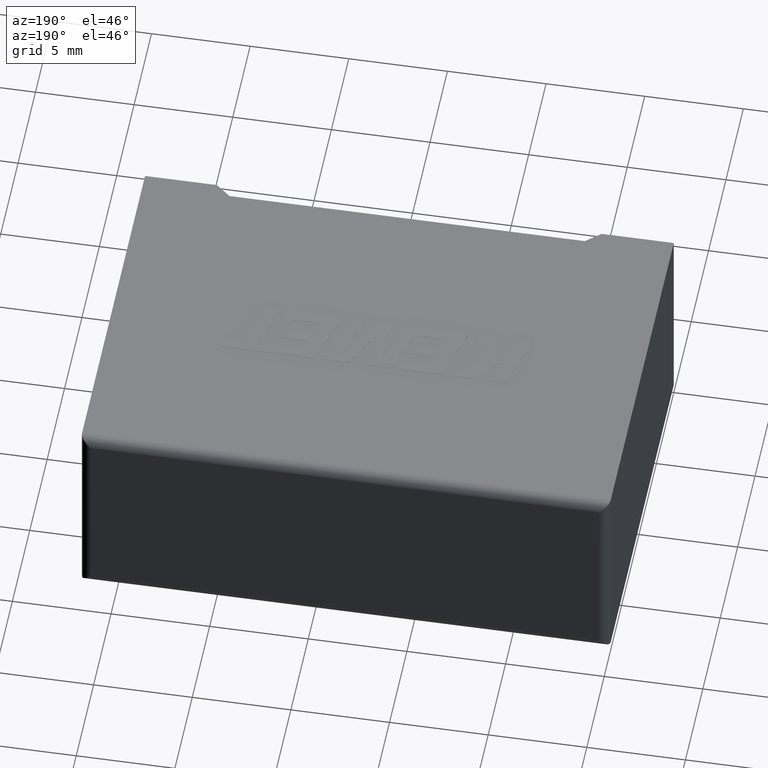
[diagram: clean part render]
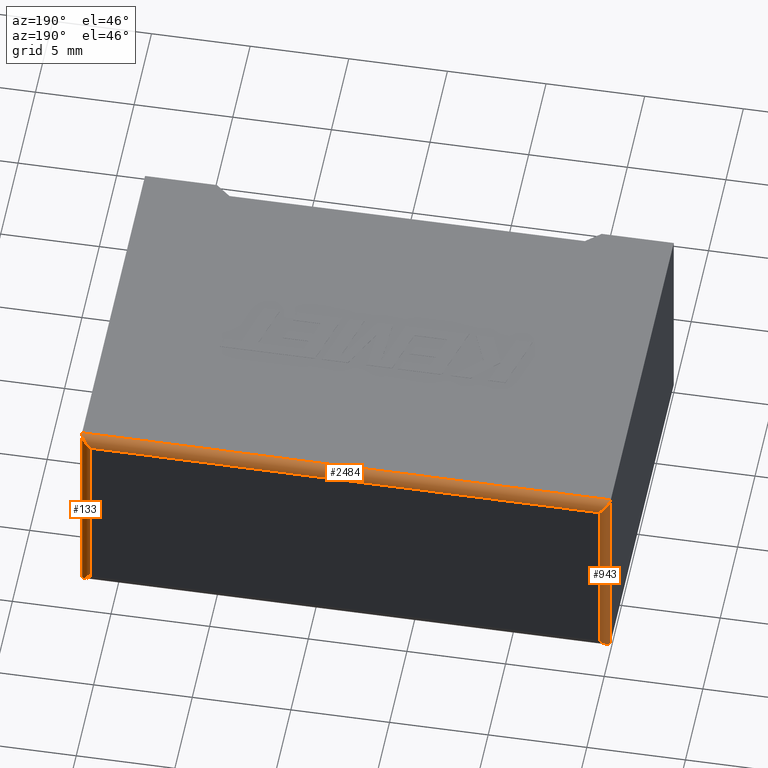
[diagram: same view with one multi-face feature highlighted, each face labeled with its STEP entity id]
A machine part, auxiliary view. The highlighted faces form ONE feature: a constant-radius fillet chain: 3 tangent blend faces with common blend radius 0.5 mm. The faces share edges in the B-rep.
Their STEP definitions:
[1] entity #133 (Cylinder):
#13 = DIRECTION ( 'NONE',  ( -1.000000000000000000, 0.000000000000000000, 0.000000000000000000 ) ) ;
#20 = ORIENTED_EDGE ( 'NONE', *, *, #569, .F. ) ;
#133 = ADVANCED_FACE ( 'NONE', ( #1385 ), #2353, .T. ) ;
#204 = CARTESIAN_POINT ( 'NONE',  ( 26.80000000000000071, 18.10000000000000142, 0.000000000000000000 ) ) ;
#207 = EDGE_CURVE ( 'NONE', #1116, #2681, #519, .T. ) ;
#297 = CARTESIAN_POINT ( 'NONE',  ( 26.80000000000000071, 18.10000000000000142, 10.19999999999999929 ) ) ;
#336 = LINE ( 'NONE', #297, #1291 ) ;
#414 = ORIENTED_EDGE ( 'NONE', *, *, #207, .F. ) ;
#519 =( BOUNDED_CURVE ( )  B_SPLINE_CURVE ( 3, ( #1913, #2195, #737, #1002 ),
 .UNSPECIFIED., .F., .F. ) 
 B_SPLINE_CURVE_WITH_KNOTS ( ( 4, 4 ),
 ( 3.141592653589793116, 4.712388980384689674 ),
 .UNSPECIFIED. ) 
 CURVE ( )  GEOMETRIC_REPRESENTATION_ITEM ( )  RATIONAL_B_SPLINE_CURVE ( ( 1.000000000000000000, 0.8047378541243649375, 0.8047378541243649375, 1.000000000000000000 ) ) 
 REPRESENTATION_ITEM ( '' )  );
#569 = EDGE_CURVE ( 'NONE', #2681, #1154, #2877, .T. ) ;
#687 = CARTESIAN_POINT ( 'NONE',  ( 26.80000000000000071, 18.10000000000000142, 10.19999999999999929 ) ) ;
#737 = CARTESIAN_POINT ( 'NONE',  ( 26.59289321881345103, 18.60000000000000142, 9.992893218813451384 ) ) ;
#980 = CARTESIAN_POINT ( 'NONE',  ( 26.30000000000000071, 18.60000000000000142, 10.19999999999999929 ) ) ;
#1002 = CARTESIAN_POINT ( 'NONE',  ( 26.30000000000000071, 18.60000000000000142, 9.699999999999999289 ) ) ;
#1016 = EDGE_LOOP ( 'NONE', ( #2862, #20, #414, #1764 ) ) ;
#1037 = CARTESIAN_POINT ( 'NONE',  ( 26.30000000000000071, 18.60000000000000142, 0.5000000000000004441 ) ) ;
#1116 = VERTEX_POINT ( 'NONE', #687 ) ;
#1154 = VERTEX_POINT ( 'NONE', #1899 ) ;
#1172 = VERTEX_POINT ( 'NONE', #204 ) ;
#1291 = VECTOR ( 'NONE', #2240, 1000.000000000000000 ) ;
#1300 = AXIS2_PLACEMENT_3D ( 'NONE', #1665, #2138, #13 ) ;
#1327 = EDGE_CURVE ( 'NONE', #1172, #1116, #336, .T. ) ;
#1385 = FACE_OUTER_BOUND ( 'NONE', #1016, .T. ) ;
#1497 = CARTESIAN_POINT ( 'NONE',  ( 26.30000000000000071, 18.60000000000000142, 9.699999999999999289 ) ) ;
#1665 = CARTESIAN_POINT ( 'NONE',  ( 26.30000000000000071, 18.10000000000000142, 10.19999999999999929 ) ) ;
#1764 = ORIENTED_EDGE ( 'NONE', *, *, #1327, .F. ) ;
#1887 =( BOUNDED_CURVE ( )  B_SPLINE_CURVE ( 3, ( #1037, #2013, #2922, #2275 ),
 .UNSPECIFIED., .F., .F. ) 
 B_SPLINE_CURVE_WITH_KNOTS ( ( 4, 4 ),
 ( 4.712388980384689674, 6.283185307179586232 ),
 .UNSPECIFIED. ) 
 CURVE ( )  GEOMETRIC_REPRESENTATION_ITEM ( )  RATIONAL_B_SPLINE_CURVE ( ( 1.000000000000000000, 0.8047378541243649375, 0.8047378541243649375, 1.000000000000000000 ) ) 
 REPRESENTATION_ITEM ( '' )  );
#1899 = CARTESIAN_POINT ( 'NONE',  ( 26.30000000000000071, 18.60000000000000142, 0.5000000000000004441 ) ) ;
#1913 = CARTESIAN_POINT ( 'NONE',  ( 26.80000000000000071, 18.10000000000000142, 10.19999999999999929 ) ) ;
#2013 = CARTESIAN_POINT ( 'NONE',  ( 26.59289321881345103, 18.60000000000000142, 0.2071067811865480723 ) ) ;
#2062 = EDGE_CURVE ( 'NONE', #1154, #1172, #1887, .T. ) ;
#2138 = DIRECTION ( 'NONE',  ( 0.000000000000000000, 0.000000000000000000, -1.000000000000000000 ) ) ;
#2195 = CARTESIAN_POINT ( 'NONE',  ( 26.80000000000000071, 18.39289321881345529, 10.19999999999999929 ) ) ;
#2240 = DIRECTION ( 'NONE',  ( -0.000000000000000000, -0.000000000000000000, 1.000000000000000000 ) ) ;
#2275 = CARTESIAN_POINT ( 'NONE',  ( 26.80000000000000071, 18.10000000000000142, 0.000000000000000000 ) ) ;
#2353 = CYLINDRICAL_SURFACE ( 'NONE', #1300, 0.5000000000000004441 ) ;
#2604 = VECTOR ( 'NONE', #2623, 1000.000000000000000 ) ;
#2623 = DIRECTION ( 'NONE',  ( 0.000000000000000000, 0.000000000000000000, -1.000000000000000000 ) ) ;
#2681 = VERTEX_POINT ( 'NONE', #1497 ) ;
#2862 = ORIENTED_EDGE ( 'NONE', *, *, #2062, .F. ) ;
#2877 = LINE ( 'NONE', #980, #2604 ) ;
#2922 = CARTESIAN_POINT ( 'NONE',  ( 26.80000000000000071, 18.39289321881345529, 5.421010862427522170E-16 ) ) ;
[2] entity #2484 (Cylinder):
#9 = LINE ( 'NONE', #1431, #2153 ) ;
#24 = ORIENTED_EDGE ( 'NONE', *, *, #136, .F. ) ;
#136 = EDGE_CURVE ( 'NONE', #1116, #528, #9, .T. ) ;
#173 = CARTESIAN_POINT ( 'NONE',  ( 0.5000000000000000000, 18.60000000000000142, 9.699999999999999289 ) ) ;
#207 = EDGE_CURVE ( 'NONE', #1116, #2681, #519, .T. ) ;
#298 = ORIENTED_EDGE ( 'NONE', *, *, #2242, .F. ) ;
#429 = CARTESIAN_POINT ( 'NONE',  ( 0.000000000000000000, 18.10000000000000142, 10.19999999999999929 ) ) ;
#469 = AXIS2_PLACEMENT_3D ( 'NONE', #2527, #1124, #2801 ) ;
#519 =( BOUNDED_CURVE ( )  B_SPLINE_CURVE ( 3, ( #1913, #2195, #737, #1002 ),
 .UNSPECIFIED., .F., .F. ) 
 B_SPLINE_CURVE_WITH_KNOTS ( ( 4, 4 ),
 ( 3.141592653589793116, 4.712388980384689674 ),
 .UNSPECIFIED. ) 
 CURVE ( )  GEOMETRIC_REPRESENTATION_ITEM ( )  RATIONAL_B_SPLINE_CURVE ( ( 1.000000000000000000, 0.8047378541243649375, 0.8047378541243649375, 1.000000000000000000 ) ) 
 REPRESENTATION_ITEM ( '' )  );
#528 = VERTEX_POINT ( 'NONE', #968 ) ;
#687 = CARTESIAN_POINT ( 'NONE',  ( 26.80000000000000071, 18.10000000000000142, 10.19999999999999929 ) ) ;
#737 = CARTESIAN_POINT ( 'NONE',  ( 26.59289321881345103, 18.60000000000000142, 9.992893218813451384 ) ) ;
#968 = CARTESIAN_POINT ( 'NONE',  ( 0.000000000000000000, 18.10000000000000142, 10.19999999999999929 ) ) ;
#1002 = CARTESIAN_POINT ( 'NONE',  ( 26.30000000000000071, 18.60000000000000142, 9.699999999999999289 ) ) ;
#1116 = VERTEX_POINT ( 'NONE', #687 ) ;
#1124 = DIRECTION ( 'NONE',  ( -1.000000000000000000, 0.000000000000000000, 0.000000000000000000 ) ) ;
#1240 = ORIENTED_EDGE ( 'NONE', *, *, #207, .T. ) ;
#1266 =( BOUNDED_CURVE ( )  B_SPLINE_CURVE ( 3, ( #429, #1358, #1863, #2758 ),
 .UNSPECIFIED., .F., .F. ) 
 B_SPLINE_CURVE_WITH_KNOTS ( ( 4, 4 ),
 ( 0.000000000000000000, 1.570796326794896558 ),
 .UNSPECIFIED. ) 
 CURVE ( )  GEOMETRIC_REPRESENTATION_ITEM ( )  RATIONAL_B_SPLINE_CURVE ( ( 1.000000000000000000, 0.8047378541243649375, 0.8047378541243649375, 1.000000000000000000 ) ) 
 REPRESENTATION_ITEM ( '' )  );
#1358 = CARTESIAN_POINT ( 'NONE',  ( 1.084202172485504434E-16, 18.39289321881345529, 10.19999999999999929 ) ) ;
#1431 = CARTESIAN_POINT ( 'NONE',  ( 0.000000000000000000, 18.10000000000000142, 10.19999999999999929 ) ) ;
#1497 = CARTESIAN_POINT ( 'NONE',  ( 26.30000000000000071, 18.60000000000000142, 9.699999999999999289 ) ) ;
#1738 = EDGE_LOOP ( 'NONE', ( #1240, #1813, #298, #24 ) ) ;
#1813 = ORIENTED_EDGE ( 'NONE', *, *, #2019, .F. ) ;
#1863 = CARTESIAN_POINT ( 'NONE',  ( 0.2071067811865475727, 18.60000000000000142, 9.992893218813451384 ) ) ;
#1913 = CARTESIAN_POINT ( 'NONE',  ( 26.80000000000000071, 18.10000000000000142, 10.19999999999999929 ) ) ;
#1930 = DIRECTION ( 'NONE',  ( -1.000000000000000000, 0.000000000000000000, 0.000000000000000000 ) ) ;
#1961 = CARTESIAN_POINT ( 'NONE',  ( 0.000000000000000000, 18.60000000000000142, 9.699999999999999289 ) ) ;
#2019 = EDGE_CURVE ( 'NONE', #2237, #2681, #2907, .T. ) ;
#2153 = VECTOR ( 'NONE', #1930, 1000.000000000000000 ) ;
#2195 = CARTESIAN_POINT ( 'NONE',  ( 26.80000000000000071, 18.39289321881345529, 10.19999999999999929 ) ) ;
#2237 = VERTEX_POINT ( 'NONE', #173 ) ;
#2242 = EDGE_CURVE ( 'NONE', #528, #2237, #1266, .T. ) ;
#2313 = CYLINDRICAL_SURFACE ( 'NONE', #469, 0.5000000000000004441 ) ;
#2376 = DIRECTION ( 'NONE',  ( 1.000000000000000000, -0.000000000000000000, -0.000000000000000000 ) ) ;
#2484 = ADVANCED_FACE ( 'NONE', ( #2814 ), #2313, .T. ) ;
#2527 = CARTESIAN_POINT ( 'NONE',  ( 0.000000000000000000, 18.10000000000000142, 9.699999999999999289 ) ) ;
#2681 = VERTEX_POINT ( 'NONE', #1497 ) ;
#2758 = CARTESIAN_POINT ( 'NONE',  ( 0.5000000000000000000, 18.60000000000000142, 9.699999999999999289 ) ) ;
#2801 = DIRECTION ( 'NONE',  ( 0.000000000000000000, 0.000000000000000000, 1.000000000000000000 ) ) ;
#2814 = FACE_OUTER_BOUND ( 'NONE', #1738, .T. ) ;
#2886 = VECTOR ( 'NONE', #2376, 1000.000000000000000 ) ;
#2907 = LINE ( 'NONE', #1961, #2886 ) ;
[3] entity #943 (Cylinder):
#104 = CARTESIAN_POINT ( 'NONE',  ( 0.000000000000000000, 18.10000000000000142, 0.000000000000000000 ) ) ;
#124 = CARTESIAN_POINT ( 'NONE',  ( 0.5000000000000000000, 18.60000000000000142, 0.5000000000000004441 ) ) ;
#130 = CARTESIAN_POINT ( 'NONE',  ( 0.5000000000000000000, 18.60000000000000142, 0.5000000000000004441 ) ) ;
#173 = CARTESIAN_POINT ( 'NONE',  ( 0.5000000000000000000, 18.60000000000000142, 9.699999999999999289 ) ) ;
#301 = CARTESIAN_POINT ( 'NONE',  ( 0.5000000000000000000, 18.60000000000000142, 10.19999999999999929 ) ) ;
#323 = CYLINDRICAL_SURFACE ( 'NONE', #476, 0.5000000000000000000 ) ;
#429 = CARTESIAN_POINT ( 'NONE',  ( 0.000000000000000000, 18.10000000000000142, 10.19999999999999929 ) ) ;
#476 = AXIS2_PLACEMENT_3D ( 'NONE', #1481, #1225, #2727 ) ;
#480 = ORIENTED_EDGE ( 'NONE', *, *, #2698, .F. ) ;
#528 = VERTEX_POINT ( 'NONE', #968 ) ;
#564 = FACE_OUTER_BOUND ( 'NONE', #2101, .T. ) ;
#649 = LINE ( 'NONE', #1595, #2249 ) ;
#823 = DIRECTION ( 'NONE',  ( -0.000000000000000000, -0.000000000000000000, 1.000000000000000000 ) ) ;
#943 = ADVANCED_FACE ( 'NONE', ( #564 ), #323, .T. ) ;
#968 = CARTESIAN_POINT ( 'NONE',  ( 0.000000000000000000, 18.10000000000000142, 10.19999999999999929 ) ) ;
#1004 = VECTOR ( 'NONE', #823, 1000.000000000000000 ) ;
#1033 = CARTESIAN_POINT ( 'NONE',  ( 1.442892915397364602E-16, 18.39289321881345174, 5.779701605339383077E-16 ) ) ;
#1225 = DIRECTION ( 'NONE',  ( 0.000000000000000000, 0.000000000000000000, -1.000000000000000000 ) ) ;
#1266 =( BOUNDED_CURVE ( )  B_SPLINE_CURVE ( 3, ( #429, #1358, #1863, #2758 ),
 .UNSPECIFIED., .F., .F. ) 
 B_SPLINE_CURVE_WITH_KNOTS ( ( 4, 4 ),
 ( 0.000000000000000000, 1.570796326794896558 ),
 .UNSPECIFIED. ) 
 CURVE ( )  GEOMETRIC_REPRESENTATION_ITEM ( )  RATIONAL_B_SPLINE_CURVE ( ( 1.000000000000000000, 0.8047378541243649375, 0.8047378541243649375, 1.000000000000000000 ) ) 
 REPRESENTATION_ITEM ( '' )  );
#1267 = CARTESIAN_POINT ( 'NONE',  ( 0.2071067811865475172, 18.60000000000000142, 0.2071067811865479058 ) ) ;
#1284 = ORIENTED_EDGE ( 'NONE', *, *, #2341, .T. ) ;
#1348 = DIRECTION ( 'NONE',  ( 0.000000000000000000, 0.000000000000000000, -1.000000000000000000 ) ) ;
#1358 = CARTESIAN_POINT ( 'NONE',  ( 1.084202172485504434E-16, 18.39289321881345529, 10.19999999999999929 ) ) ;
#1481 = CARTESIAN_POINT ( 'NONE',  ( 0.5000000000000000000, 18.10000000000000142, 10.19999999999999929 ) ) ;
#1572 =( BOUNDED_CURVE ( )  B_SPLINE_CURVE ( 3, ( #124, #1267, #1033, #104 ),
 .UNSPECIFIED., .F., .F. ) 
 B_SPLINE_CURVE_WITH_KNOTS ( ( 4, 4 ),
 ( 1.570796326794896780, 3.141592653589793116 ),
 .UNSPECIFIED. ) 
 CURVE ( )  GEOMETRIC_REPRESENTATION_ITEM ( )  RATIONAL_B_SPLINE_CURVE ( ( 1.000000000000000000, 0.8047378541243650485, 0.8047378541243650485, 1.000000000000000000 ) ) 
 REPRESENTATION_ITEM ( '' )  );
#1595 = CARTESIAN_POINT ( 'NONE',  ( 0.000000000000000000, 18.10000000000000142, 10.19999999999999929 ) ) ;
#1743 = LINE ( 'NONE', #301, #1004 ) ;
#1821 = CARTESIAN_POINT ( 'NONE',  ( 0.000000000000000000, 18.10000000000000142, 0.000000000000000000 ) ) ;
#1863 = CARTESIAN_POINT ( 'NONE',  ( 0.2071067811865475727, 18.60000000000000142, 9.992893218813451384 ) ) ;
#1935 = EDGE_CURVE ( 'NONE', #528, #2450, #649, .T. ) ;
#1984 = ORIENTED_EDGE ( 'NONE', *, *, #1935, .F. ) ;
#2101 = EDGE_LOOP ( 'NONE', ( #2373, #480, #1284, #1984 ) ) ;
#2237 = VERTEX_POINT ( 'NONE', #173 ) ;
#2242 = EDGE_CURVE ( 'NONE', #528, #2237, #1266, .T. ) ;
#2249 = VECTOR ( 'NONE', #1348, 1000.000000000000000 ) ;
#2341 = EDGE_CURVE ( 'NONE', #3004, #2450, #1572, .T. ) ;
#2373 = ORIENTED_EDGE ( 'NONE', *, *, #2242, .T. ) ;
#2450 = VERTEX_POINT ( 'NONE', #1821 ) ;
#2698 = EDGE_CURVE ( 'NONE', #3004, #2237, #1743, .T. ) ;
#2727 = DIRECTION ( 'NONE',  ( -1.000000000000000000, 0.000000000000000000, 0.000000000000000000 ) ) ;
#2758 = CARTESIAN_POINT ( 'NONE',  ( 0.5000000000000000000, 18.60000000000000142, 9.699999999999999289 ) ) ;
#3004 = VERTEX_POINT ( 'NONE', #130 ) ;